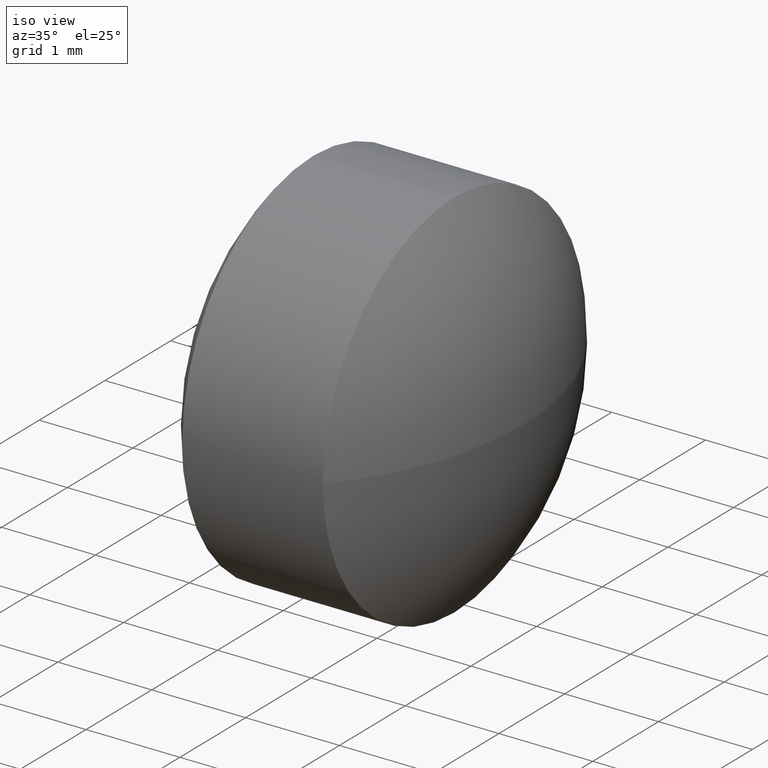
[diagram: clean part render]
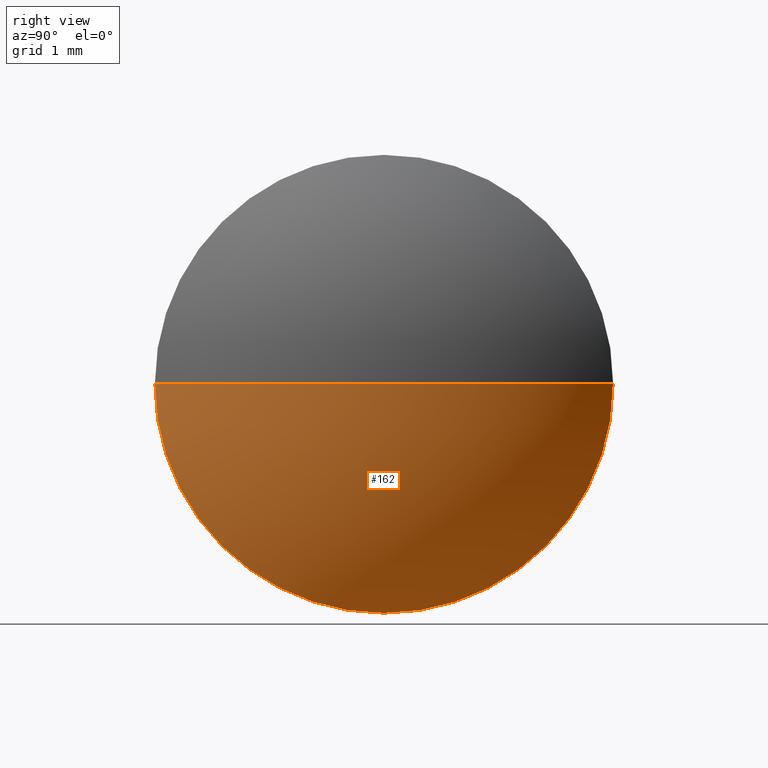
[diagram: tour spotlight — one face highlighted and labeled with its STEP entity id]
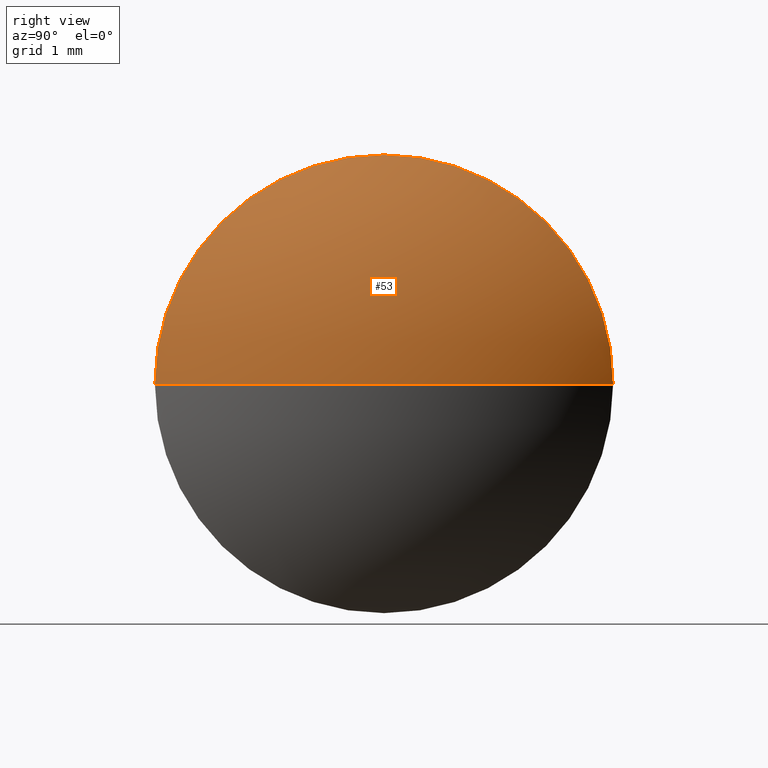
[diagram: tour spotlight — one face highlighted and labeled with its STEP entity id]
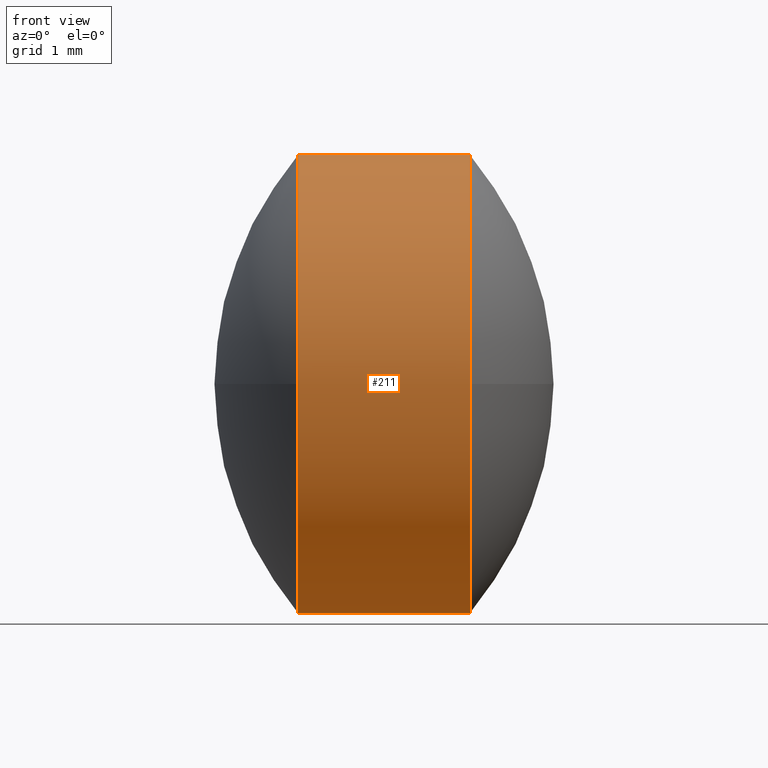
[diagram: tour spotlight — one face highlighted and labeled with its STEP entity id]
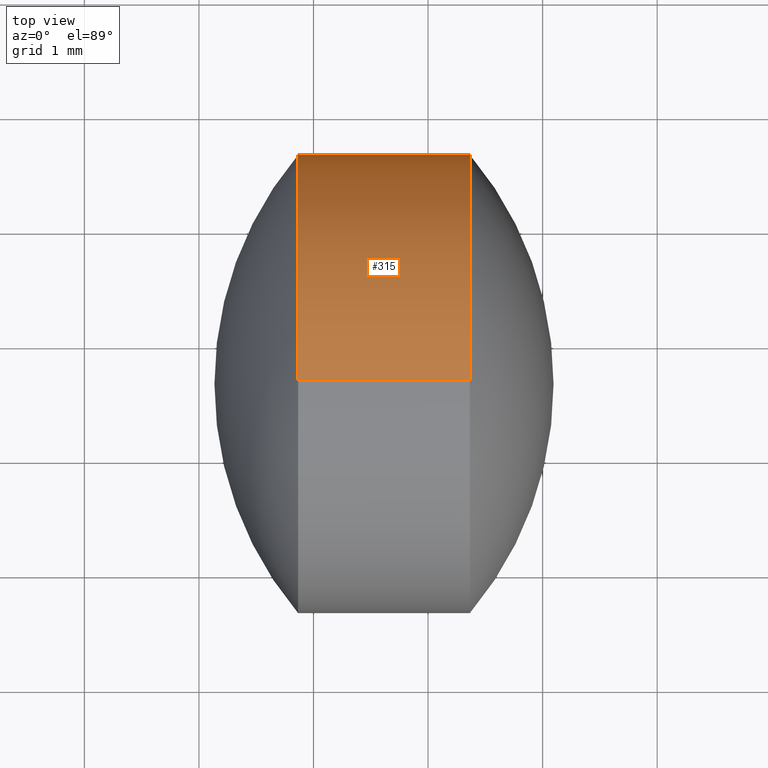
[diagram: tour spotlight — one face highlighted and labeled with its STEP entity id]
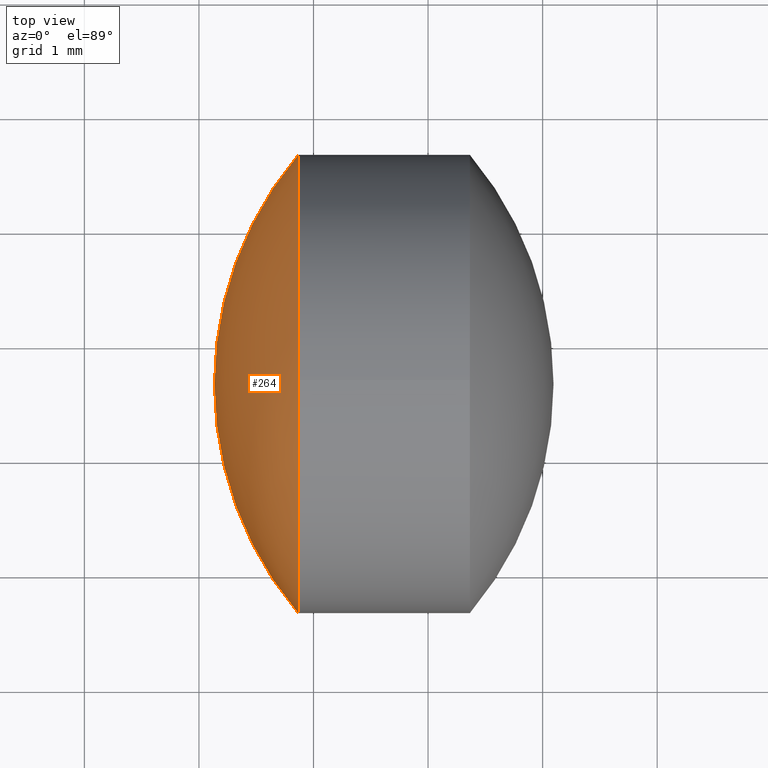
[diagram: tour spotlight — one face highlighted and labeled with its STEP entity id]
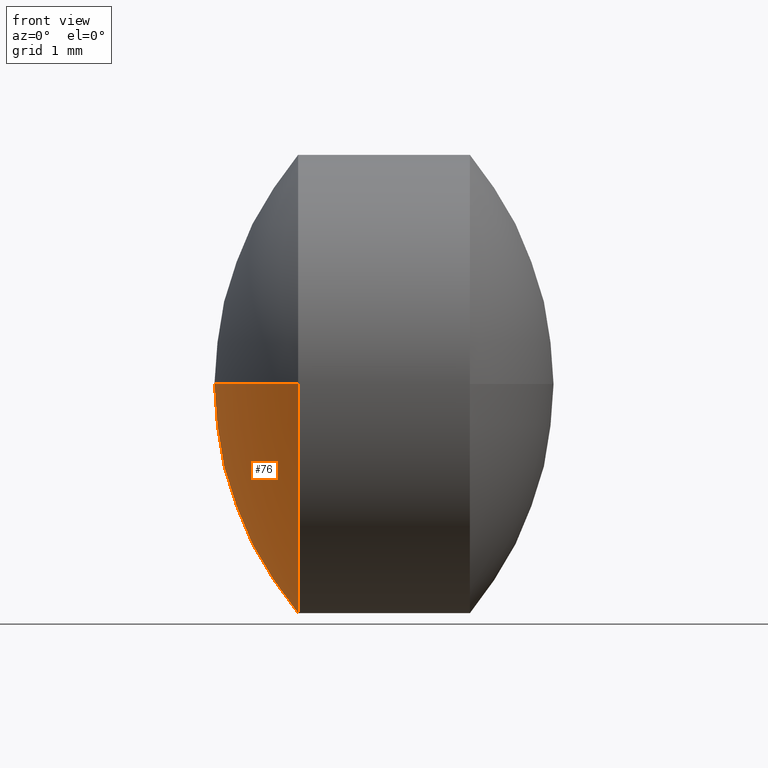
[diagram: tour spotlight — one face highlighted and labeled with its STEP entity id]
A machine part: a face-by-face anatomy tour. The part has 6 B-rep faces; the first image is the clean iso view, then the 6 largest visible faces are spotlighted one at a time (largest first), each with its STEP entity span.

Face 1 — right view, entity #162. In plain terms, the highlighted spherical surface has radius 3.1047 mm.
Definition (entity closure, byte-faithful):
#5 = DIRECTION ( 'NONE',  ( -1.000000000000000000, -0.0000000000000000000, -0.0000000000000000000 ) ) ;
#29 = CARTESIAN_POINT ( 'NONE',  ( 14.36546358656102900, 7.656080791052722200, 0.0000000000000000000 ) ) ;
#34 = CARTESIAN_POINT ( 'NONE',  ( 11.99073755916374400, 7.656080791052730200, 0.0000000000000000000 ) ) ;
#38 = CARTESIAN_POINT ( 'NONE',  ( 14.36546358656102900, 7.656080791052722200, 0.0000000000000000000 ) ) ;
#44 = ORIENTED_EDGE ( 'NONE', *, *, #95, .F. ) ;
#49 = VERTEX_POINT ( 'NONE', #58 ) ;
#58 = CARTESIAN_POINT ( 'NONE',  ( 15.09546358656102200, 7.656080791052730200, 0.0000000000000000000 ) ) ;
#62 = CARTESIAN_POINT ( 'NONE',  ( 11.99073755916374400, 7.656080791052730200, 0.0000000000000000000 ) ) ;
#68 = AXIS2_PLACEMENT_3D ( 'NONE', #34, #148, #225 ) ;
#71 = EDGE_LOOP ( 'NONE', ( #296, #305, #149, #44 ) ) ;
#73 = AXIS2_PLACEMENT_3D ( 'NONE', #98, #184, #178 ) ;
#90 = AXIS2_PLACEMENT_3D ( 'NONE', #38, #5, #306 ) ;
#95 = EDGE_CURVE ( 'NONE', #156, #217, #186, .T. ) ;
#98 = CARTESIAN_POINT ( 'NONE',  ( 11.99073755916374400, 7.656080791052730200, 0.0000000000000000000 ) ) ;
#110 = CIRCLE ( 'NONE', #190, 1.999999999999998200 ) ;
#135 = FACE_OUTER_BOUND ( 'NONE', #71, .T. ) ;
#147 = CARTESIAN_POINT ( 'NONE',  ( 14.36546358656102900, 5.656080791052727500, 0.0000000000000000000 ) ) ;
#148 = DIRECTION ( 'NONE',  ( 0.0000000000000000000, 0.0000000000000000000, 1.000000000000000000 ) ) ;
#149 = ORIENTED_EDGE ( 'NONE', *, *, #261, .F. ) ;
#153 = DIRECTION ( 'NONE',  ( 0.0000000000000000000, 0.0000000000000000000, 1.000000000000000000 ) ) ;
#156 = VERTEX_POINT ( 'NONE', #308 ) ;
#162 = ADVANCED_FACE ( 'NONE', ( #135 ), #212, .T. ) ;
#178 = DIRECTION ( 'NONE',  ( 0.0000000000000000000, -1.000000000000000000, -1.224646799147353200E-016 ) ) ;
#184 = DIRECTION ( 'NONE',  ( 0.0000000000000000000, -1.224646799147353200E-016, 1.000000000000000000 ) ) ;
#186 = CIRCLE ( 'NONE', #90, 1.999999999999998200 ) ;
#190 = AXIS2_PLACEMENT_3D ( 'NONE', #29, #302, #153 ) ;
#212 = SPHERICAL_SURFACE ( 'NONE', #68, 3.104726027397278500 ) ;
#217 = VERTEX_POINT ( 'NONE', #253 ) ;
#225 = DIRECTION ( 'NONE',  ( 0.0000000000000000000, -1.000000000000000000, 0.0000000000000000000 ) ) ;
#226 = DIRECTION ( 'NONE',  ( 0.0000000000000000000, 0.0000000000000000000, -1.000000000000000000 ) ) ;
#238 = EDGE_CURVE ( 'NONE', #49, #266, #335, .T. ) ;
#242 = CIRCLE ( 'NONE', #73, 3.104726027397278500 ) ;
#253 = CARTESIAN_POINT ( 'NONE',  ( 14.36546358656102900, 7.656080791052722200, -1.999999999999998200 ) ) ;
#261 = EDGE_CURVE ( 'NONE', #217, #266, #110, .T. ) ;
#266 = VERTEX_POINT ( 'NONE', #147 ) ;
#267 = AXIS2_PLACEMENT_3D ( 'NONE', #62, #226, #272 ) ;
#272 = DIRECTION ( 'NONE',  ( -1.000000000000000000, 0.0000000000000000000, 0.0000000000000000000 ) ) ;
#296 = ORIENTED_EDGE ( 'NONE', *, *, #324, .F. ) ;
#302 = DIRECTION ( 'NONE',  ( -1.000000000000000000, -0.0000000000000000000, -0.0000000000000000000 ) ) ;
#305 = ORIENTED_EDGE ( 'NONE', *, *, #238, .T. ) ;
#306 = DIRECTION ( 'NONE',  ( 0.0000000000000000000, 0.0000000000000000000, 1.000000000000000000 ) ) ;
#308 = CARTESIAN_POINT ( 'NONE',  ( 14.36546358656102900, 9.656080791052724900, 2.449293598294700000E-016 ) ) ;
#324 = EDGE_CURVE ( 'NONE', #49, #156, #242, .T. ) ;
#335 = CIRCLE ( 'NONE', #267, 3.104726027397277700 ) ;

Face 2 — right view, entity #53. In plain terms, the highlighted spherical surface has radius 3.1047 mm.
Definition (entity closure, byte-faithful):
#8 = DIRECTION ( 'NONE',  ( 0.0000000000000000000, 0.0000000000000000000, 1.000000000000000000 ) ) ;
#18 = EDGE_CURVE ( 'NONE', #317, #156, #59, .T. ) ;
#24 = ORIENTED_EDGE ( 'NONE', *, *, #234, .F. ) ;
#26 = DIRECTION ( 'NONE',  ( 0.0000000000000000000, 0.0000000000000000000, 1.000000000000000000 ) ) ;
#49 = VERTEX_POINT ( 'NONE', #58 ) ;
#53 = ADVANCED_FACE ( 'NONE', ( #282 ), #321, .T. ) ;
#58 = CARTESIAN_POINT ( 'NONE',  ( 15.09546358656102200, 7.656080791052730200, 0.0000000000000000000 ) ) ;
#59 = CIRCLE ( 'NONE', #105, 1.999999999999998200 ) ;
#62 = CARTESIAN_POINT ( 'NONE',  ( 11.99073755916374400, 7.656080791052730200, 0.0000000000000000000 ) ) ;
#73 = AXIS2_PLACEMENT_3D ( 'NONE', #98, #184, #178 ) ;
#81 = CIRCLE ( 'NONE', #274, 1.999999999999998200 ) ;
#89 = CARTESIAN_POINT ( 'NONE',  ( 14.36546358656102900, 7.656080791052722200, 0.0000000000000000000 ) ) ;
#98 = CARTESIAN_POINT ( 'NONE',  ( 11.99073755916374400, 7.656080791052730200, 0.0000000000000000000 ) ) ;
#105 = AXIS2_PLACEMENT_3D ( 'NONE', #343, #195, #26 ) ;
#117 = DIRECTION ( 'NONE',  ( -1.000000000000000000, -0.0000000000000000000, -0.0000000000000000000 ) ) ;
#147 = CARTESIAN_POINT ( 'NONE',  ( 14.36546358656102900, 5.656080791052727500, 0.0000000000000000000 ) ) ;
#150 = ORIENTED_EDGE ( 'NONE', *, *, #324, .T. ) ;
#156 = VERTEX_POINT ( 'NONE', #308 ) ;
#167 = CARTESIAN_POINT ( 'NONE',  ( 11.99073755916374400, 7.656080791052730200, 0.0000000000000000000 ) ) ;
#178 = DIRECTION ( 'NONE',  ( 0.0000000000000000000, -1.000000000000000000, -1.224646799147353200E-016 ) ) ;
#184 = DIRECTION ( 'NONE',  ( 0.0000000000000000000, -1.224646799147353200E-016, 1.000000000000000000 ) ) ;
#193 = DIRECTION ( 'NONE',  ( 0.0000000000000000000, 0.0000000000000000000, 1.000000000000000000 ) ) ;
#195 = DIRECTION ( 'NONE',  ( -1.000000000000000000, -0.0000000000000000000, -0.0000000000000000000 ) ) ;
#208 = CARTESIAN_POINT ( 'NONE',  ( 14.36546358656102900, 7.656080791052722200, 1.999999999999998200 ) ) ;
#226 = DIRECTION ( 'NONE',  ( 0.0000000000000000000, 0.0000000000000000000, -1.000000000000000000 ) ) ;
#234 = EDGE_CURVE ( 'NONE', #266, #317, #81, .T. ) ;
#238 = EDGE_CURVE ( 'NONE', #49, #266, #335, .T. ) ;
#242 = CIRCLE ( 'NONE', #73, 3.104726027397278500 ) ;
#246 = ORIENTED_EDGE ( 'NONE', *, *, #238, .F. ) ;
#258 = AXIS2_PLACEMENT_3D ( 'NONE', #167, #193, #342 ) ;
#262 = EDGE_LOOP ( 'NONE', ( #246, #150, #263, #24 ) ) ;
#263 = ORIENTED_EDGE ( 'NONE', *, *, #18, .F. ) ;
#266 = VERTEX_POINT ( 'NONE', #147 ) ;
#267 = AXIS2_PLACEMENT_3D ( 'NONE', #62, #226, #272 ) ;
#272 = DIRECTION ( 'NONE',  ( -1.000000000000000000, 0.0000000000000000000, 0.0000000000000000000 ) ) ;
#274 = AXIS2_PLACEMENT_3D ( 'NONE', #89, #117, #8 ) ;
#282 = FACE_OUTER_BOUND ( 'NONE', #262, .T. ) ;
#308 = CARTESIAN_POINT ( 'NONE',  ( 14.36546358656102900, 9.656080791052724900, 2.449293598294700000E-016 ) ) ;
#317 = VERTEX_POINT ( 'NONE', #208 ) ;
#321 = SPHERICAL_SURFACE ( 'NONE', #258, 3.104726027397278500 ) ;
#324 = EDGE_CURVE ( 'NONE', #49, #156, #242, .T. ) ;
#335 = CIRCLE ( 'NONE', #267, 3.104726027397277700 ) ;
#342 = DIRECTION ( 'NONE',  ( 0.0000000000000000000, -1.000000000000000000, 0.0000000000000000000 ) ) ;
#343 = CARTESIAN_POINT ( 'NONE',  ( 14.36546358656102900, 7.656080791052722200, 0.0000000000000000000 ) ) ;

Face 3 — front view, entity #211. In plain terms, the highlighted cylindrical surface (partial cylindrical patch) has radius 2 mm, axis along (-1, -0, -0).
Definition (entity closure, byte-faithful):
#8 = DIRECTION ( 'NONE',  ( 0.0000000000000000000, 0.0000000000000000000, 1.000000000000000000 ) ) ;
#10 = LINE ( 'NONE', #114, #75 ) ;
#29 = CARTESIAN_POINT ( 'NONE',  ( 14.36546358656102900, 7.656080791052722200, 0.0000000000000000000 ) ) ;
#51 = FACE_OUTER_BOUND ( 'NONE', #84, .T. ) ;
#60 = CARTESIAN_POINT ( 'NONE',  ( 12.86546358656102900, 7.656080791052722200, 0.0000000000000000000 ) ) ;
#65 = DIRECTION ( 'NONE',  ( -1.000000000000000000, -0.0000000000000000000, -0.0000000000000000000 ) ) ;
#72 = VECTOR ( 'NONE', #327, 1000.000000000000000 ) ;
#75 = VECTOR ( 'NONE', #65, 1000.000000000000000 ) ;
#81 = CIRCLE ( 'NONE', #274, 1.999999999999998200 ) ;
#84 = EDGE_LOOP ( 'NONE', ( #118, #192, #181, #134, #196, #168 ) ) ;
#89 = CARTESIAN_POINT ( 'NONE',  ( 14.36546358656102900, 7.656080791052722200, 0.0000000000000000000 ) ) ;
#108 = EDGE_CURVE ( 'NONE', #215, #292, #182, .T. ) ;
#110 = CIRCLE ( 'NONE', #190, 1.999999999999998200 ) ;
#112 = DIRECTION ( 'NONE',  ( -1.000000000000000000, -0.0000000000000000000, -0.0000000000000000000 ) ) ;
#114 = CARTESIAN_POINT ( 'NONE',  ( 11.59663177087693100, 7.656080791052722200, -1.999999999999998200 ) ) ;
#117 = DIRECTION ( 'NONE',  ( -1.000000000000000000, -0.0000000000000000000, -0.0000000000000000000 ) ) ;
#118 = ORIENTED_EDGE ( 'NONE', *, *, #213, .F. ) ;
#120 = CARTESIAN_POINT ( 'NONE',  ( 12.86546358656102900, 5.656080791052724000, -2.449293598294704900E-016 ) ) ;
#134 = ORIENTED_EDGE ( 'NONE', *, *, #158, .T. ) ;
#145 = CARTESIAN_POINT ( 'NONE',  ( 12.86546358656102900, 7.656080791052722200, 0.0000000000000000000 ) ) ;
#147 = CARTESIAN_POINT ( 'NONE',  ( 14.36546358656102900, 5.656080791052727500, 0.0000000000000000000 ) ) ;
#153 = DIRECTION ( 'NONE',  ( 0.0000000000000000000, 0.0000000000000000000, 1.000000000000000000 ) ) ;
#158 = EDGE_CURVE ( 'NONE', #317, #292, #345, .T. ) ;
#168 = ORIENTED_EDGE ( 'NONE', *, *, #255, .F. ) ;
#170 = VERTEX_POINT ( 'NONE', #173 ) ;
#173 = CARTESIAN_POINT ( 'NONE',  ( 12.86546358656102900, 7.656080791052722200, -1.999999999999998200 ) ) ;
#176 = DIRECTION ( 'NONE',  ( -1.000000000000000000, -0.0000000000000000000, -0.0000000000000000000 ) ) ;
#181 = ORIENTED_EDGE ( 'NONE', *, *, #234, .T. ) ;
#182 = CIRCLE ( 'NONE', #307, 1.999999999999998200 ) ;
#189 = CIRCLE ( 'NONE', #288, 1.999999999999998200 ) ;
#190 = AXIS2_PLACEMENT_3D ( 'NONE', #29, #302, #153 ) ;
#192 = ORIENTED_EDGE ( 'NONE', *, *, #261, .T. ) ;
#196 = ORIENTED_EDGE ( 'NONE', *, *, #108, .F. ) ;
#208 = CARTESIAN_POINT ( 'NONE',  ( 14.36546358656102900, 7.656080791052722200, 1.999999999999998200 ) ) ;
#211 = ADVANCED_FACE ( 'NONE', ( #51 ), #237, .T. ) ;
#213 = EDGE_CURVE ( 'NONE', #217, #170, #10, .T. ) ;
#215 = VERTEX_POINT ( 'NONE', #120 ) ;
#217 = VERTEX_POINT ( 'NONE', #253 ) ;
#229 = CARTESIAN_POINT ( 'NONE',  ( 11.59663177087693100, 7.656080791052722200, 0.0000000000000000000 ) ) ;
#234 = EDGE_CURVE ( 'NONE', #266, #317, #81, .T. ) ;
#237 = CYLINDRICAL_SURFACE ( 'NONE', #293, 1.999999999999998200 ) ;
#250 = DIRECTION ( 'NONE',  ( 0.0000000000000000000, 0.0000000000000000000, 1.000000000000000000 ) ) ;
#253 = CARTESIAN_POINT ( 'NONE',  ( 14.36546358656102900, 7.656080791052722200, -1.999999999999998200 ) ) ;
#255 = EDGE_CURVE ( 'NONE', #170, #215, #189, .T. ) ;
#261 = EDGE_CURVE ( 'NONE', #217, #266, #110, .T. ) ;
#266 = VERTEX_POINT ( 'NONE', #147 ) ;
#274 = AXIS2_PLACEMENT_3D ( 'NONE', #89, #117, #8 ) ;
#275 = DIRECTION ( 'NONE',  ( 0.0000000000000000000, 0.0000000000000000000, 1.000000000000000000 ) ) ;
#278 = CARTESIAN_POINT ( 'NONE',  ( 11.59663177087693100, 7.656080791052722200, 1.999999999999998200 ) ) ;
#288 = AXIS2_PLACEMENT_3D ( 'NONE', #60, #112, #326 ) ;
#292 = VERTEX_POINT ( 'NONE', #338 ) ;
#293 = AXIS2_PLACEMENT_3D ( 'NONE', #229, #176, #250 ) ;
#302 = DIRECTION ( 'NONE',  ( -1.000000000000000000, -0.0000000000000000000, -0.0000000000000000000 ) ) ;
#303 = DIRECTION ( 'NONE',  ( -1.000000000000000000, -0.0000000000000000000, -0.0000000000000000000 ) ) ;
#307 = AXIS2_PLACEMENT_3D ( 'NONE', #145, #303, #275 ) ;
#317 = VERTEX_POINT ( 'NONE', #208 ) ;
#326 = DIRECTION ( 'NONE',  ( 0.0000000000000000000, 0.0000000000000000000, 1.000000000000000000 ) ) ;
#327 = DIRECTION ( 'NONE',  ( -1.000000000000000000, -0.0000000000000000000, -0.0000000000000000000 ) ) ;
#338 = CARTESIAN_POINT ( 'NONE',  ( 12.86546358656102900, 7.656080791052722200, 1.999999999999998200 ) ) ;
#345 = LINE ( 'NONE', #278, #72 ) ;

Face 4 — top view, entity #315. In plain terms, the highlighted cylindrical surface (partial cylindrical patch) has radius 2 mm, axis along (-1, -0, -0).
Definition (entity closure, byte-faithful):
#4 = ORIENTED_EDGE ( 'NONE', *, *, #158, .F. ) ;
#5 = DIRECTION ( 'NONE',  ( -1.000000000000000000, -0.0000000000000000000, -0.0000000000000000000 ) ) ;
#7 = CARTESIAN_POINT ( 'NONE',  ( 12.86546358656102900, 7.656080791052722200, 0.0000000000000000000 ) ) ;
#10 = LINE ( 'NONE', #114, #75 ) ;
#16 = DIRECTION ( 'NONE',  ( 0.0000000000000000000, 0.0000000000000000000, 1.000000000000000000 ) ) ;
#18 = EDGE_CURVE ( 'NONE', #317, #156, #59, .T. ) ;
#20 = EDGE_LOOP ( 'NONE', ( #157, #36, #107, #50, #4, #320 ) ) ;
#26 = DIRECTION ( 'NONE',  ( 0.0000000000000000000, 0.0000000000000000000, 1.000000000000000000 ) ) ;
#27 = AXIS2_PLACEMENT_3D ( 'NONE', #180, #45, #207 ) ;
#36 = ORIENTED_EDGE ( 'NONE', *, *, #213, .T. ) ;
#38 = CARTESIAN_POINT ( 'NONE',  ( 14.36546358656102900, 7.656080791052722200, 0.0000000000000000000 ) ) ;
#45 = DIRECTION ( 'NONE',  ( -1.000000000000000000, -0.0000000000000000000, -0.0000000000000000000 ) ) ;
#50 = ORIENTED_EDGE ( 'NONE', *, *, #297, .F. ) ;
#59 = CIRCLE ( 'NONE', #105, 1.999999999999998200 ) ;
#65 = DIRECTION ( 'NONE',  ( -1.000000000000000000, -0.0000000000000000000, -0.0000000000000000000 ) ) ;
#72 = VECTOR ( 'NONE', #327, 1000.000000000000000 ) ;
#75 = VECTOR ( 'NONE', #65, 1000.000000000000000 ) ;
#85 = CYLINDRICAL_SURFACE ( 'NONE', #27, 1.999999999999998200 ) ;
#90 = AXIS2_PLACEMENT_3D ( 'NONE', #38, #5, #306 ) ;
#95 = EDGE_CURVE ( 'NONE', #156, #217, #186, .T. ) ;
#105 = AXIS2_PLACEMENT_3D ( 'NONE', #343, #195, #26 ) ;
#107 = ORIENTED_EDGE ( 'NONE', *, *, #172, .F. ) ;
#114 = CARTESIAN_POINT ( 'NONE',  ( 11.59663177087693100, 7.656080791052722200, -1.999999999999998200 ) ) ;
#126 = DIRECTION ( 'NONE',  ( -1.000000000000000000, -0.0000000000000000000, -0.0000000000000000000 ) ) ;
#143 = VERTEX_POINT ( 'NONE', #222 ) ;
#156 = VERTEX_POINT ( 'NONE', #308 ) ;
#157 = ORIENTED_EDGE ( 'NONE', *, *, #95, .T. ) ;
#158 = EDGE_CURVE ( 'NONE', #317, #292, #345, .T. ) ;
#170 = VERTEX_POINT ( 'NONE', #173 ) ;
#172 = EDGE_CURVE ( 'NONE', #143, #170, #269, .T. ) ;
#173 = CARTESIAN_POINT ( 'NONE',  ( 12.86546358656102900, 7.656080791052722200, -1.999999999999998200 ) ) ;
#180 = CARTESIAN_POINT ( 'NONE',  ( 11.59663177087693100, 7.656080791052722200, 0.0000000000000000000 ) ) ;
#186 = CIRCLE ( 'NONE', #90, 1.999999999999998200 ) ;
#195 = DIRECTION ( 'NONE',  ( -1.000000000000000000, -0.0000000000000000000, -0.0000000000000000000 ) ) ;
#198 = DIRECTION ( 'NONE',  ( -1.000000000000000000, -0.0000000000000000000, -0.0000000000000000000 ) ) ;
#203 = AXIS2_PLACEMENT_3D ( 'NONE', #337, #126, #16 ) ;
#207 = DIRECTION ( 'NONE',  ( 0.0000000000000000000, 0.0000000000000000000, 1.000000000000000000 ) ) ;
#208 = CARTESIAN_POINT ( 'NONE',  ( 14.36546358656102900, 7.656080791052722200, 1.999999999999998200 ) ) ;
#213 = EDGE_CURVE ( 'NONE', #217, #170, #10, .T. ) ;
#217 = VERTEX_POINT ( 'NONE', #253 ) ;
#222 = CARTESIAN_POINT ( 'NONE',  ( 12.86546358656102900, 9.656080791052721300, 0.0000000000000000000 ) ) ;
#253 = CARTESIAN_POINT ( 'NONE',  ( 14.36546358656102900, 7.656080791052722200, -1.999999999999998200 ) ) ;
#269 = CIRCLE ( 'NONE', #286, 1.999999999999998200 ) ;
#276 = DIRECTION ( 'NONE',  ( 0.0000000000000000000, 0.0000000000000000000, 1.000000000000000000 ) ) ;
#278 = CARTESIAN_POINT ( 'NONE',  ( 11.59663177087693100, 7.656080791052722200, 1.999999999999998200 ) ) ;
#286 = AXIS2_PLACEMENT_3D ( 'NONE', #7, #198, #276 ) ;
#292 = VERTEX_POINT ( 'NONE', #338 ) ;
#297 = EDGE_CURVE ( 'NONE', #292, #143, #299, .T. ) ;
#299 = CIRCLE ( 'NONE', #203, 1.999999999999998200 ) ;
#306 = DIRECTION ( 'NONE',  ( 0.0000000000000000000, 0.0000000000000000000, 1.000000000000000000 ) ) ;
#308 = CARTESIAN_POINT ( 'NONE',  ( 14.36546358656102900, 9.656080791052724900, 2.449293598294700000E-016 ) ) ;
#312 = FACE_OUTER_BOUND ( 'NONE', #20, .T. ) ;
#315 = ADVANCED_FACE ( 'NONE', ( #312 ), #85, .T. ) ;
#317 = VERTEX_POINT ( 'NONE', #208 ) ;
#320 = ORIENTED_EDGE ( 'NONE', *, *, #18, .T. ) ;
#327 = DIRECTION ( 'NONE',  ( -1.000000000000000000, -0.0000000000000000000, -0.0000000000000000000 ) ) ;
#337 = CARTESIAN_POINT ( 'NONE',  ( 12.86546358656102900, 7.656080791052722200, 0.0000000000000000000 ) ) ;
#338 = CARTESIAN_POINT ( 'NONE',  ( 12.86546358656102900, 7.656080791052722200, 1.999999999999998200 ) ) ;
#343 = CARTESIAN_POINT ( 'NONE',  ( 14.36546358656102900, 7.656080791052722200, 0.0000000000000000000 ) ) ;
#345 = LINE ( 'NONE', #278, #72 ) ;

Face 5 — top view, entity #264. In plain terms, the highlighted spherical surface has radius 3.1047 mm.
Definition (entity closure, byte-faithful):
#2 = AXIS2_PLACEMENT_3D ( 'NONE', #171, #3, #334 ) ;
#3 = DIRECTION ( 'NONE',  ( -0.0000000000000000000, 0.0000000000000000000, -1.000000000000000000 ) ) ;
#16 = DIRECTION ( 'NONE',  ( 0.0000000000000000000, 0.0000000000000000000, 1.000000000000000000 ) ) ;
#35 = ORIENTED_EDGE ( 'NONE', *, *, #248, .F. ) ;
#64 = ORIENTED_EDGE ( 'NONE', *, *, #108, .T. ) ;
#74 = ORIENTED_EDGE ( 'NONE', *, *, #79, .T. ) ;
#78 = SPHERICAL_SURFACE ( 'NONE', #2, 3.104726027397255900 ) ;
#79 = EDGE_CURVE ( 'NONE', #143, #291, #245, .T. ) ;
#86 = DIRECTION ( 'NONE',  ( 0.0000000000000000000, 1.000000000000000000, 1.224646799147353000E-016 ) ) ;
#87 = DIRECTION ( 'NONE',  ( 0.0000000000000000000, 1.224646799147353200E-016, -1.000000000000000000 ) ) ;
#91 = DIRECTION ( 'NONE',  ( 1.000000000000000000, 0.0000000000000000000, 0.0000000000000000000 ) ) ;
#108 = EDGE_CURVE ( 'NONE', #215, #292, #182, .T. ) ;
#120 = CARTESIAN_POINT ( 'NONE',  ( 12.86546358656102900, 5.656080791052724000, -2.449293598294704900E-016 ) ) ;
#126 = DIRECTION ( 'NONE',  ( -1.000000000000000000, -0.0000000000000000000, -0.0000000000000000000 ) ) ;
#137 = FACE_OUTER_BOUND ( 'NONE', #219, .T. ) ;
#140 = AXIS2_PLACEMENT_3D ( 'NONE', #220, #87, #86 ) ;
#143 = VERTEX_POINT ( 'NONE', #222 ) ;
#145 = CARTESIAN_POINT ( 'NONE',  ( 12.86546358656102900, 7.656080791052722200, 0.0000000000000000000 ) ) ;
#171 = CARTESIAN_POINT ( 'NONE',  ( 15.24018961395828400, 7.656080791052722200, 0.0000000000000000000 ) ) ;
#182 = CIRCLE ( 'NONE', #307, 1.999999999999998200 ) ;
#200 = CARTESIAN_POINT ( 'NONE',  ( 15.24018961395828400, 7.656080791052722200, 0.0000000000000000000 ) ) ;
#203 = AXIS2_PLACEMENT_3D ( 'NONE', #337, #126, #16 ) ;
#215 = VERTEX_POINT ( 'NONE', #120 ) ;
#219 = EDGE_LOOP ( 'NONE', ( #35, #64, #252, #74 ) ) ;
#220 = CARTESIAN_POINT ( 'NONE',  ( 15.24018961395828400, 7.656080791052722200, 0.0000000000000000000 ) ) ;
#222 = CARTESIAN_POINT ( 'NONE',  ( 12.86546358656102900, 9.656080791052721300, 0.0000000000000000000 ) ) ;
#245 = CIRCLE ( 'NONE', #340, 3.104726027397256800 ) ;
#248 = EDGE_CURVE ( 'NONE', #215, #291, #325, .T. ) ;
#249 = DIRECTION ( 'NONE',  ( -0.0000000000000000000, 0.0000000000000000000, 1.000000000000000000 ) ) ;
#252 = ORIENTED_EDGE ( 'NONE', *, *, #297, .T. ) ;
#264 = ADVANCED_FACE ( 'NONE', ( #137 ), #78, .T. ) ;
#275 = DIRECTION ( 'NONE',  ( 0.0000000000000000000, 0.0000000000000000000, 1.000000000000000000 ) ) ;
#285 = CARTESIAN_POINT ( 'NONE',  ( 12.13546358656102900, 7.656080791052722200, 0.0000000000000000000 ) ) ;
#291 = VERTEX_POINT ( 'NONE', #285 ) ;
#292 = VERTEX_POINT ( 'NONE', #338 ) ;
#297 = EDGE_CURVE ( 'NONE', #292, #143, #299, .T. ) ;
#299 = CIRCLE ( 'NONE', #203, 1.999999999999998200 ) ;
#303 = DIRECTION ( 'NONE',  ( -1.000000000000000000, -0.0000000000000000000, -0.0000000000000000000 ) ) ;
#307 = AXIS2_PLACEMENT_3D ( 'NONE', #145, #303, #275 ) ;
#325 = CIRCLE ( 'NONE', #140, 3.104726027397256800 ) ;
#334 = DIRECTION ( 'NONE',  ( 0.0000000000000000000, 1.000000000000000000, 0.0000000000000000000 ) ) ;
#337 = CARTESIAN_POINT ( 'NONE',  ( 12.86546358656102900, 7.656080791052722200, 0.0000000000000000000 ) ) ;
#338 = CARTESIAN_POINT ( 'NONE',  ( 12.86546358656102900, 7.656080791052722200, 1.999999999999998200 ) ) ;
#340 = AXIS2_PLACEMENT_3D ( 'NONE', #200, #249, #91 ) ;

Face 6 — front view, entity #76. In plain terms, the highlighted spherical surface has radius 3.1047 mm.
Definition (entity closure, byte-faithful):
#7 = CARTESIAN_POINT ( 'NONE',  ( 12.86546358656102900, 7.656080791052722200, 0.0000000000000000000 ) ) ;
#17 = EDGE_LOOP ( 'NONE', ( #216, #235, #241, #33 ) ) ;
#25 = CARTESIAN_POINT ( 'NONE',  ( 15.24018961395828400, 7.656080791052722200, 0.0000000000000000000 ) ) ;
#33 = ORIENTED_EDGE ( 'NONE', *, *, #79, .F. ) ;
#60 = CARTESIAN_POINT ( 'NONE',  ( 12.86546358656102900, 7.656080791052722200, 0.0000000000000000000 ) ) ;
#76 = ADVANCED_FACE ( 'NONE', ( #161 ), #130, .T. ) ;
#79 = EDGE_CURVE ( 'NONE', #143, #291, #245, .T. ) ;
#82 = DIRECTION ( 'NONE',  ( -0.0000000000000000000, 0.0000000000000000000, -1.000000000000000000 ) ) ;
#86 = DIRECTION ( 'NONE',  ( 0.0000000000000000000, 1.000000000000000000, 1.224646799147353000E-016 ) ) ;
#87 = DIRECTION ( 'NONE',  ( 0.0000000000000000000, 1.224646799147353200E-016, -1.000000000000000000 ) ) ;
#91 = DIRECTION ( 'NONE',  ( 1.000000000000000000, 0.0000000000000000000, 0.0000000000000000000 ) ) ;
#112 = DIRECTION ( 'NONE',  ( -1.000000000000000000, -0.0000000000000000000, -0.0000000000000000000 ) ) ;
#120 = CARTESIAN_POINT ( 'NONE',  ( 12.86546358656102900, 5.656080791052724000, -2.449293598294704900E-016 ) ) ;
#125 = AXIS2_PLACEMENT_3D ( 'NONE', #25, #82, #139 ) ;
#130 = SPHERICAL_SURFACE ( 'NONE', #125, 3.104726027397255900 ) ;
#139 = DIRECTION ( 'NONE',  ( 0.0000000000000000000, 1.000000000000000000, 0.0000000000000000000 ) ) ;
#140 = AXIS2_PLACEMENT_3D ( 'NONE', #220, #87, #86 ) ;
#143 = VERTEX_POINT ( 'NONE', #222 ) ;
#161 = FACE_OUTER_BOUND ( 'NONE', #17, .T. ) ;
#170 = VERTEX_POINT ( 'NONE', #173 ) ;
#172 = EDGE_CURVE ( 'NONE', #143, #170, #269, .T. ) ;
#173 = CARTESIAN_POINT ( 'NONE',  ( 12.86546358656102900, 7.656080791052722200, -1.999999999999998200 ) ) ;
#189 = CIRCLE ( 'NONE', #288, 1.999999999999998200 ) ;
#198 = DIRECTION ( 'NONE',  ( -1.000000000000000000, -0.0000000000000000000, -0.0000000000000000000 ) ) ;
#200 = CARTESIAN_POINT ( 'NONE',  ( 15.24018961395828400, 7.656080791052722200, 0.0000000000000000000 ) ) ;
#215 = VERTEX_POINT ( 'NONE', #120 ) ;
#216 = ORIENTED_EDGE ( 'NONE', *, *, #172, .T. ) ;
#220 = CARTESIAN_POINT ( 'NONE',  ( 15.24018961395828400, 7.656080791052722200, 0.0000000000000000000 ) ) ;
#222 = CARTESIAN_POINT ( 'NONE',  ( 12.86546358656102900, 9.656080791052721300, 0.0000000000000000000 ) ) ;
#235 = ORIENTED_EDGE ( 'NONE', *, *, #255, .T. ) ;
#241 = ORIENTED_EDGE ( 'NONE', *, *, #248, .T. ) ;
#245 = CIRCLE ( 'NONE', #340, 3.104726027397256800 ) ;
#248 = EDGE_CURVE ( 'NONE', #215, #291, #325, .T. ) ;
#249 = DIRECTION ( 'NONE',  ( -0.0000000000000000000, 0.0000000000000000000, 1.000000000000000000 ) ) ;
#255 = EDGE_CURVE ( 'NONE', #170, #215, #189, .T. ) ;
#269 = CIRCLE ( 'NONE', #286, 1.999999999999998200 ) ;
#276 = DIRECTION ( 'NONE',  ( 0.0000000000000000000, 0.0000000000000000000, 1.000000000000000000 ) ) ;
#285 = CARTESIAN_POINT ( 'NONE',  ( 12.13546358656102900, 7.656080791052722200, 0.0000000000000000000 ) ) ;
#286 = AXIS2_PLACEMENT_3D ( 'NONE', #7, #198, #276 ) ;
#288 = AXIS2_PLACEMENT_3D ( 'NONE', #60, #112, #326 ) ;
#291 = VERTEX_POINT ( 'NONE', #285 ) ;
#325 = CIRCLE ( 'NONE', #140, 3.104726027397256800 ) ;
#326 = DIRECTION ( 'NONE',  ( 0.0000000000000000000, 0.0000000000000000000, 1.000000000000000000 ) ) ;
#340 = AXIS2_PLACEMENT_3D ( 'NONE', #200, #249, #91 ) ;